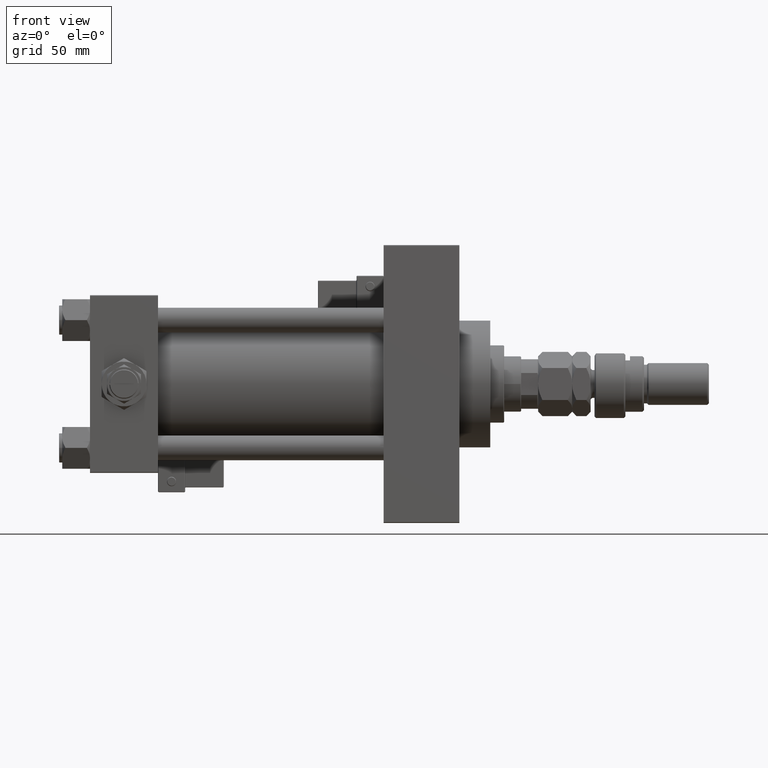
[diagram: clean part render]
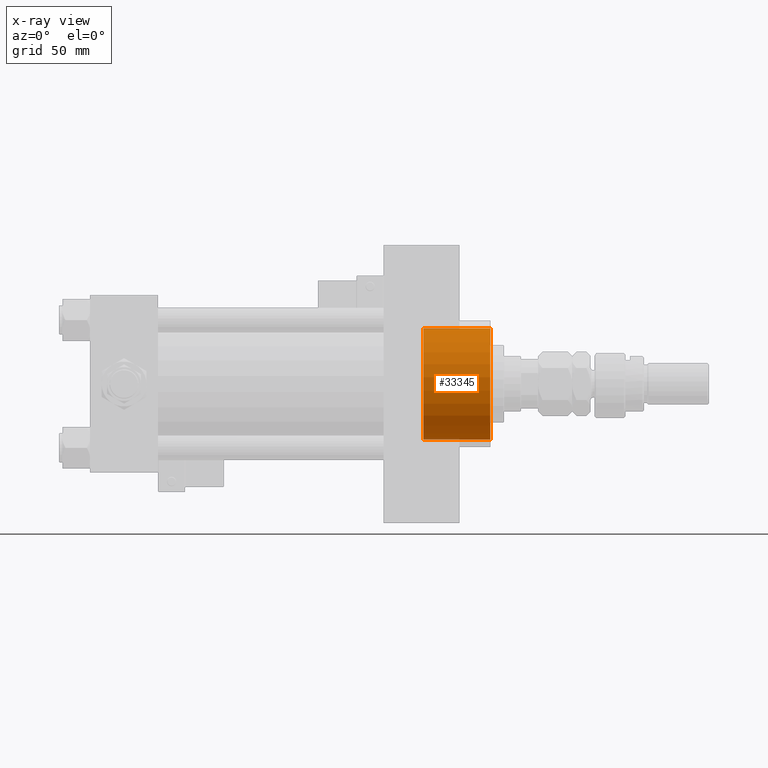
[diagram: x-ray — body ghosted, one internal face saturated and labeled with its STEP entity id]
A machine part, front view, then the same camera in x-ray: the body is ghosted and one INTERNAL B-rep face — a face not visible from any outside direction — is saturated and labeled: STEP entity #33345.
In plain terms, the highlighted cylindrical surface (partial cylindrical patch) has radius 36 mm, axis along (1, 0, 0).
Its self-contained STEP definition (entity closure, byte-faithful):
#575 = CARTESIAN_POINT ( 'NONE',  ( 259.0000000000000000, 0.000000000000000000, 0.000000000000000000 ) ) ;
#725 = DIRECTION ( 'NONE',  ( 1.000000000000000000, -0.000000000000000000, -0.000000000000000000 ) ) ;
#2480 = LINE ( 'NONE', #36381, #10220 ) ;
#3485 = CARTESIAN_POINT ( 'NONE',  ( 215.7400000000000091, 4.408728476930470856E-15, 36.00000000000000000 ) ) ;
#4135 = DIRECTION ( 'NONE',  ( 1.000000000000000000, 0.000000000000000000, 0.000000000000000000 ) ) ;
#4409 = ORIENTED_EDGE ( 'NONE', *, *, #12461, .F. ) ;
#4868 = CARTESIAN_POINT ( 'NONE',  ( 215.7400000000000091, 0.000000000000000000, 0.000000000000000000 ) ) ;
#5356 = AXIS2_PLACEMENT_3D ( 'NONE', #4868, #725, #25576 ) ;
#6998 = VERTEX_POINT ( 'NONE', #8917 ) ;
#8365 = CIRCLE ( 'NONE', #21550, 36.00000000000000000 ) ;
#8917 = CARTESIAN_POINT ( 'NONE',  ( 259.0000000000000000, 4.408728476930470856E-15, 36.00000000000000000 ) ) ;
#9021 = FACE_OUTER_BOUND ( 'NONE', #51744, .T. ) ;
#9231 = VERTEX_POINT ( 'NONE', #3485 ) ;
#9429 = CARTESIAN_POINT ( 'NONE',  ( 259.0000000000000000, 0.000000000000000000, -36.00000000000000000 ) ) ;
#10220 = VECTOR ( 'NONE', #15434, 1000.000000000000000 ) ;
#12461 = EDGE_CURVE ( 'NONE', #9231, #51475, #42590, .T. ) ;
#14197 = EDGE_CURVE ( 'NONE', #6998, #29374, #8365, .T. ) ;
#15434 = DIRECTION ( 'NONE',  ( 1.000000000000000000, -0.000000000000000000, -0.000000000000000000 ) ) ;
#20669 = EDGE_CURVE ( 'NONE', #51475, #29374, #47013, .T. ) ;
#21246 = DIRECTION ( 'NONE',  ( 0.000000000000000000, 0.000000000000000000, -1.000000000000000000 ) ) ;
#21550 = AXIS2_PLACEMENT_3D ( 'NONE', #575, #24871, #28994 ) ;
#24871 = DIRECTION ( 'NONE',  ( 1.000000000000000000, 0.000000000000000000, 0.000000000000000000 ) ) ;
#25576 = DIRECTION ( 'NONE',  ( 0.000000000000000000, 0.000000000000000000, -1.000000000000000000 ) ) ;
#28994 = DIRECTION ( 'NONE',  ( 0.000000000000000000, 0.000000000000000000, -1.000000000000000000 ) ) ;
#29374 = VERTEX_POINT ( 'NONE', #9429 ) ;
#30736 = CARTESIAN_POINT ( 'NONE',  ( 215.7400000000000091, 0.000000000000000000, -36.00000000000000000 ) ) ;
#33345 = ADVANCED_FACE ( 'NONE', ( #9021 ), #42902, .F. ) ;
#36381 = CARTESIAN_POINT ( 'NONE',  ( 215.7400000000000091, 4.408728476930470856E-15, 36.00000000000000000 ) ) ;
#40633 = CARTESIAN_POINT ( 'NONE',  ( 215.7400000000000091, 0.000000000000000000, -36.00000000000000000 ) ) ;
#41029 = VECTOR ( 'NONE', #46746, 1000.000000000000000 ) ;
#42168 = CARTESIAN_POINT ( 'NONE',  ( 215.7400000000000091, 0.000000000000000000, 0.000000000000000000 ) ) ;
#42590 = CIRCLE ( 'NONE', #49635, 36.00000000000000000 ) ;
#42902 = CYLINDRICAL_SURFACE ( 'NONE', #5356, 36.00000000000000000 ) ;
#45650 = ORIENTED_EDGE ( 'NONE', *, *, #14197, .T. ) ;
#46746 = DIRECTION ( 'NONE',  ( 1.000000000000000000, -0.000000000000000000, -0.000000000000000000 ) ) ;
#47013 = LINE ( 'NONE', #30736, #41029 ) ;
#47339 = ORIENTED_EDGE ( 'NONE', *, *, #48053, .T. ) ;
#47398 = ORIENTED_EDGE ( 'NONE', *, *, #20669, .F. ) ;
#48053 = EDGE_CURVE ( 'NONE', #9231, #6998, #2480, .T. ) ;
#49635 = AXIS2_PLACEMENT_3D ( 'NONE', #42168, #4135, #21246 ) ;
#51475 = VERTEX_POINT ( 'NONE', #40633 ) ;
#51744 = EDGE_LOOP ( 'NONE', ( #4409, #47339, #45650, #47398 ) ) ;